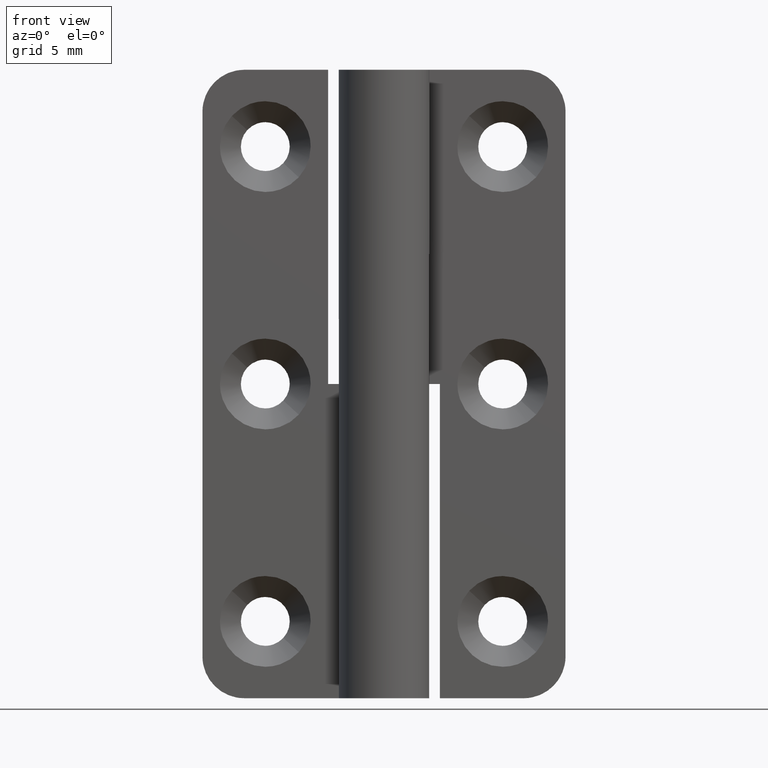
[diagram: clean part render]
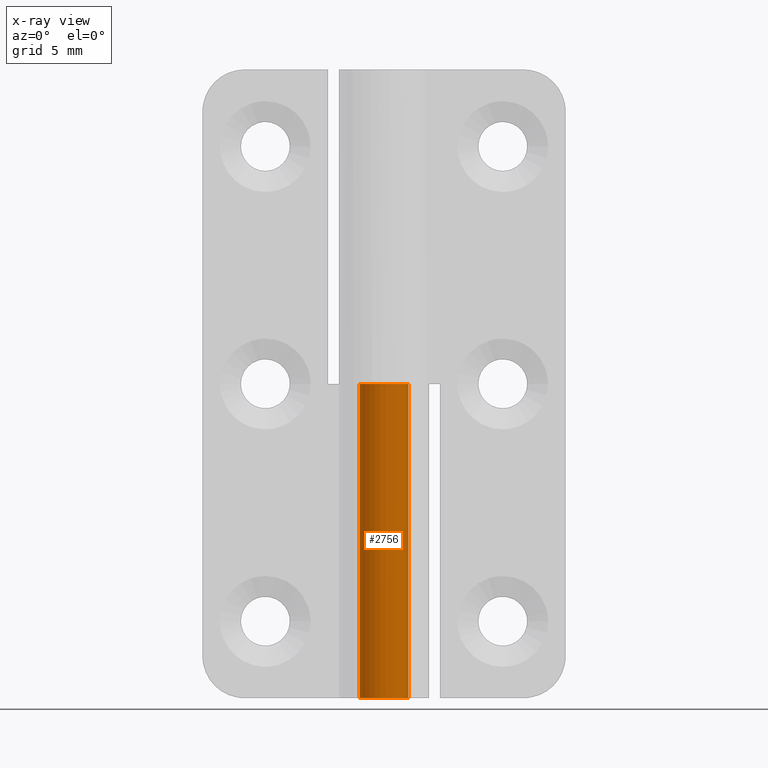
[diagram: x-ray — body ghosted, one internal face saturated and labeled with its STEP entity id]
A machine part, front view, then the same camera in x-ray: the body is ghosted and one INTERNAL B-rep face — a face not visible from any outside direction — is saturated and labeled: STEP entity #2756.
In plain terms, the highlighted face is a freeform B-spline surface patch.
Its self-contained STEP definition (entity closure, byte-faithful):
#2368=CARTESIAN_POINT('',(0.0,1.750000000000000,22.500007000000000));
#2369=VERTEX_POINT('',#2368);
#2375=CARTESIAN_POINT('',(0.868242653776353,-1.519425777773760,22.500007000000000));
#2376=VERTEX_POINT('',#2375);
#2377=CARTESIAN_POINT('',(0.0,1.750000000000000,22.500007000000000));
#2378=CARTESIAN_POINT('',(0.179277387979708,1.750093354417865,22.500006999999989));
#2379=CARTESIAN_POINT('',(0.466047122441867,1.705521806229021,22.500007000000029));
#2380=CARTESIAN_POINT('',(0.819866845168560,1.556105409946936,22.500006999999989));
#2381=CARTESIAN_POINT('',(1.081742453901442,1.386899893924595,22.500007000000071));
#2382=CARTESIAN_POINT('',(1.319339046245739,1.166529906425230,22.500006999999830));
#2383=CARTESIAN_POINT('',(1.545357626855725,0.855526525960147,22.500007000000110));
#2384=CARTESIAN_POINT('',(1.697644401291349,0.487935408210411,22.500006999999950));
#2385=CARTESIAN_POINT('',(1.755878728221747,0.120079252125557,22.500006999999989));
#2386=CARTESIAN_POINT('',(1.747059273140985,-0.203566964581856,22.500007000000029));
#2387=CARTESIAN_POINT('',(1.687035385467716,-0.497561726567087,22.500007000000011));
#2388=CARTESIAN_POINT('',(1.563889989818276,-0.809934966774009,22.500006999999961));
#2389=CARTESIAN_POINT('',(1.323699768651511,-1.184572099093087,22.500007000000089));
#2390=CARTESIAN_POINT('',(1.055151814704664,-1.412861016929052,22.500006999999929));
#2391=CARTESIAN_POINT('',(0.868242653776353,-1.519425777773760,22.500007000000000));
#2392=B_SPLINE_CURVE_WITH_KNOTS('',3,(#2377,#2378,#2379,#2380,#2381,#2382,#2383,#2384,#2385,#2386,#2387,#2388,#2389,#2390,#2391),.UNSPECIFIED.,.F.,.U.,(4,1,1,1,1,1,1,1,1,1,1,1,4),(0.000000022438612,0.537804154239369,0.860505306779768,1.147341723642136,1.470039947126059,1.828582349912388,2.294681140703891,2.653208137411418,2.940047748953172,3.262743781613001,3.549587716311907,3.943995653201228,4.589362258969709),.UNSPECIFIED.);
#2393=EDGE_CURVE('',#2369,#2376,#2392,.T.);
#2395=CARTESIAN_POINT('',(-1.507692307692310,0.888461538461534,22.500007000000000));
#2396=VERTEX_POINT('',#2395);
#2397=CARTESIAN_POINT('',(0.868242653776353,-1.519425777773760,22.500007000000000));
#2398=CARTESIAN_POINT('',(0.743738591316485,-1.590605069475430,22.500007000000021));
#2399=CARTESIAN_POINT('',(0.477109609109099,-1.702105696767981,22.500006999999979));
#2400=CARTESIAN_POINT('',(0.096124025275956,-1.759836458271545,22.500007000000050));
#2401=CARTESIAN_POINT('',(-0.251118902030745,-1.740852632811242,22.500006999999950));
#2402=CARTESIAN_POINT('',(-0.590135227696475,-1.661988739705949,22.500007000000060));
#2403=CARTESIAN_POINT('',(-0.959906727006729,-1.486216508810300,22.500006999999972));
#2404=CARTESIAN_POINT('',(-1.264256091555186,-1.229920128452726,22.500006999999911));
#2405=CARTESIAN_POINT('',(-1.476272534682027,-0.954274068064838,22.500007000000149));
#2406=CARTESIAN_POINT('',(-1.629213300849451,-0.668901973591672,22.500007000000029));
#2407=CARTESIAN_POINT('',(-1.724324488476742,-0.358403151657453,22.500006999999549));
#2408=CARTESIAN_POINT('',(-1.758694098681189,-0.024400922839743,22.500007000000299));
#2409=CARTESIAN_POINT('',(-1.728771285468592,0.394635036670264,22.500006999999769));
#2410=CARTESIAN_POINT('',(-1.617061110896152,0.703187404752774,22.500007000000100));
#2411=CARTESIAN_POINT('',(-1.507692307692310,0.888461538461534,22.500007000000000));
#2412=B_SPLINE_CURVE_WITH_KNOTS('',3,(#2397,#2398,#2399,#2400,#2401,#2402,#2403,#2404,#2405,#2406,#2407,#2408,#2409,#2410,#2411),.UNSPECIFIED.,.F.,.U.,(4,1,1,1,1,1,1,1,1,1,1,1,4),(0.000000022438606,0.430245832536479,0.860505095852535,1.147341442398912,1.470039586774727,1.900285862329977,2.366388853865112,2.653207487040602,2.940047028284871,3.334454868485721,3.621298732866856,3.943994686414801,4.589361133999850),.UNSPECIFIED.);
#2413=EDGE_CURVE('',#2376,#2396,#2412,.T.);
#2479=CARTESIAN_POINT('',(0.0,1.750000000000000,0.0));
#2480=VERTEX_POINT('',#2479);
#2539=CARTESIAN_POINT('',(-1.507692307692310,0.888461538461534,0.0));
#2540=VERTEX_POINT('',#2539);
#2546=CARTESIAN_POINT('',(0.868242653776353,-1.519425777773760,0.0));
#2547=VERTEX_POINT('',#2546);
#2548=CARTESIAN_POINT('',(0.868242653776353,-1.519425777773760,0.0));
#2549=CARTESIAN_POINT('',(0.743738589348483,-1.590605293962687,0.0));
#2550=CARTESIAN_POINT('',(0.477110662638775,-1.702099118890220,0.0));
#2551=CARTESIAN_POINT('',(0.024680192925954,-1.770706332723347,0.0));
#2552=CARTESIAN_POINT('',(-0.395083856844420,-1.721772847234004,0.0));
#2553=CARTESIAN_POINT('',(-0.800747865807661,-1.572955463140886,0.0));
#2554=CARTESIAN_POINT('',(-1.124126019305184,-1.362499066755122,0.0));
#2555=CARTESIAN_POINT('',(-1.380191331503804,-1.092063012089900,0.0));
#2556=CARTESIAN_POINT('',(-1.555955111172537,-0.820160939880481,0.0));
#2557=CARTESIAN_POINT('',(-1.682061288135908,-0.521645467272255,0.0));
#2558=CARTESIAN_POINT('',(-1.760378922890361,-0.145242369787964,0.0));
#2559=CARTESIAN_POINT('',(-1.745344761373836,0.348905350504131,0.0));
#2560=CARTESIAN_POINT('',(-1.617056497028014,0.703193800358251,0.0));
#2561=CARTESIAN_POINT('',(-1.507692307692310,0.888461538461534,0.0));
#2562=B_SPLINE_CURVE_WITH_KNOTS('',3,(#2548,#2549,#2550,#2551,#2552,#2553,#2554,#2555,#2556,#2557,#2558,#2559,#2560,#2561),.UNSPECIFIED.,.F.,.U.,(4,1,1,1,1,1,1,1,1,1,1,4),(0.000000022438606,0.430245832536479,0.860505095852535,1.362470597082303,1.685170366674734,2.151270440201413,2.509799681346595,2.796621874606397,3.119325435607802,3.477875574551342,3.943994686414801,4.589361133999850),.UNSPECIFIED.);
#2563=EDGE_CURVE('',#2547,#2540,#2562,.T.);
#2565=CARTESIAN_POINT('',(0.0,1.750000000000000,0.0));
#2566=CARTESIAN_POINT('',(0.143416604345038,1.750034914731002,0.0));
#2567=CARTESIAN_POINT('',(0.370465412946561,1.721923580433301,0.0));
#2568=CARTESIAN_POINT('',(0.689188504832025,1.617160764080190,0.0));
#2569=CARTESIAN_POINT('',(0.944497510793594,1.483774403135151,0.0));
#2570=CARTESIAN_POINT('',(1.191643030728327,1.293693695989056,0.0));
#2571=CARTESIAN_POINT('',(1.394196618208827,1.072321640123857,0.0));
#2572=CARTESIAN_POINT('',(1.574504490659942,0.789083145652556,0.0));
#2573=CARTESIAN_POINT('',(1.718927222701999,0.419390587266354,0.0));
#2574=CARTESIAN_POINT('',(1.766494195587332,0.011629956199223,0.0));
#2575=CARTESIAN_POINT('',(1.722096871562158,-0.357789255768370,0.0));
#2576=CARTESIAN_POINT('',(1.635342722488461,-0.644754875264718,0.0));
#2577=CARTESIAN_POINT('',(1.502919744591371,-0.913717242220542,0.0));
#2578=CARTESIAN_POINT('',(1.269067056454724,-1.233389856549970,0.0));
#2579=CARTESIAN_POINT('',(1.034341624638459,-1.424656554241031,0.0));
#2580=CARTESIAN_POINT('',(0.868242653776353,-1.519425777773760,0.0));
#2581=B_SPLINE_CURVE_WITH_KNOTS('',3,(#2565,#2566,#2567,#2568,#2569,#2570,#2571,#2572,#2573,#2574,#2575,#2576,#2577,#2578,#2579,#2580),.UNSPECIFIED.,.F.,.U.,(4,1,1,1,1,1,1,1,1,1,1,1,1,4),(0.000000022438612,0.430245937981772,0.681219228578835,1.003919474518003,1.290759502509800,1.613462259068961,1.900286328123291,2.294681140703891,2.796622560120991,3.119326200234904,3.406166975088245,3.693010056564124,4.015709579455233,4.589362258969709),.UNSPECIFIED.);
#2582=EDGE_CURVE('',#2480,#2547,#2581,.T.);
#2712=CARTESIAN_POINT('',(-1.507692307692310,0.888461538461534,22.500007000000000));
#2713=CARTESIAN_POINT('',(-1.507692307692310,0.888461538461534,0.0));
#2714=QUASI_UNIFORM_CURVE('',1,(#2712,#2713),.UNSPECIFIED.,.F.,.U.);
#2715=EDGE_CURVE('',#2396,#2540,#2714,.T.);
#2722=CARTESIAN_POINT('',(-1.475935030172549,0.940274314606941,23.062507175000000));
#2723=CARTESIAN_POINT('',(-1.475935030172549,0.940274314606941,-0.576562679375002));
#2724=CARTESIAN_POINT('',(-2.644008191926789,-0.893233280416713,23.062507175000004));
#2725=CARTESIAN_POINT('',(-2.644008191926789,-0.893233280416713,-0.576562679375002));
#2726=CARTESIAN_POINT('',(-0.603316258099440,-1.642714062980191,23.062507175000000));
#2727=CARTESIAN_POINT('',(-0.603316258099440,-1.642714062980191,-0.576562679375002));
#2728=CARTESIAN_POINT('',(1.437375675727909,-2.392194845543670,23.062507175000004));
#2729=CARTESIAN_POINT('',(1.437375675727909,-2.392194845543670,-0.576562679375002));
#2730=CARTESIAN_POINT('',(1.733670254207947,-0.238510900536115,23.062507175000000));
#2731=CARTESIAN_POINT('',(1.733670254207947,-0.238510900536115,-0.576562679375002));
#2732=CARTESIAN_POINT('',(2.029964832687985,1.915173044471441,23.062507175000004));
#2733=CARTESIAN_POINT('',(2.029964832687985,1.915173044471441,-0.576562679375002));
#2734=CARTESIAN_POINT('',(-0.137303417523729,1.744605334032973,23.062507175000000));
#2735=CARTESIAN_POINT('',(-0.137303417523729,1.744605334032973,-0.576562679375002));
#2743=(BOUNDED_SURFACE()B_SPLINE_SURFACE(1,2,((#2722,#2724,#2726,#2728,#2730,#2732,#2734),(#2723,#2725,#2727,#2729,#2731,#2733,#2735)),.UNSPECIFIED.,.F.,.F.,.U.)B_SPLINE_SURFACE_WITH_KNOTS((2,2),(3,2,2,3),(0.0,23.639069854374998),(0.0,3.351334755823973,6.702669511647946,10.054004267471919),.UNSPECIFIED.)GEOMETRIC_REPRESENTATION_ITEM()RATIONAL_B_SPLINE_SURFACE(((1.0,0.627057105746662,1.0,0.627057105746662,1.0,0.627057105746662,1.0),(1.0,0.627057105746662,1.0,0.627057105746662,1.0,0.627057105746662,1.0)))REPRESENTATION_ITEM('')SURFACE());
#2744=ORIENTED_EDGE('',*,*,#2413,.F.);
#2745=ORIENTED_EDGE('',*,*,#2393,.F.);
#2746=CARTESIAN_POINT('',(0.0,1.750000000000000,22.500007000000000));
#2747=CARTESIAN_POINT('',(0.0,1.750000000000000,0.0));
#2748=QUASI_UNIFORM_CURVE('',1,(#2746,#2747),.UNSPECIFIED.,.F.,.U.);
#2749=EDGE_CURVE('',#2369,#2480,#2748,.T.);
#2750=ORIENTED_EDGE('',*,*,#2749,.T.);
#2751=ORIENTED_EDGE('',*,*,#2582,.T.);
#2752=ORIENTED_EDGE('',*,*,#2563,.T.);
#2753=ORIENTED_EDGE('',*,*,#2715,.F.);
#2754=EDGE_LOOP('',(#2744,#2745,#2750,#2751,#2752,#2753));
#2755=FACE_OUTER_BOUND('',#2754,.T.);
#2756=ADVANCED_FACE('',(#2755),#2743,.F.);